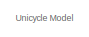
[diagram: root canvas - part 1/12, top left region]
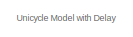
[diagram: root canvas - part 2/12, top center region]
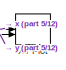
[diagram: root canvas - part 3/12, top center region]
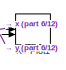
[diagram: root canvas - part 4/12, top right region]
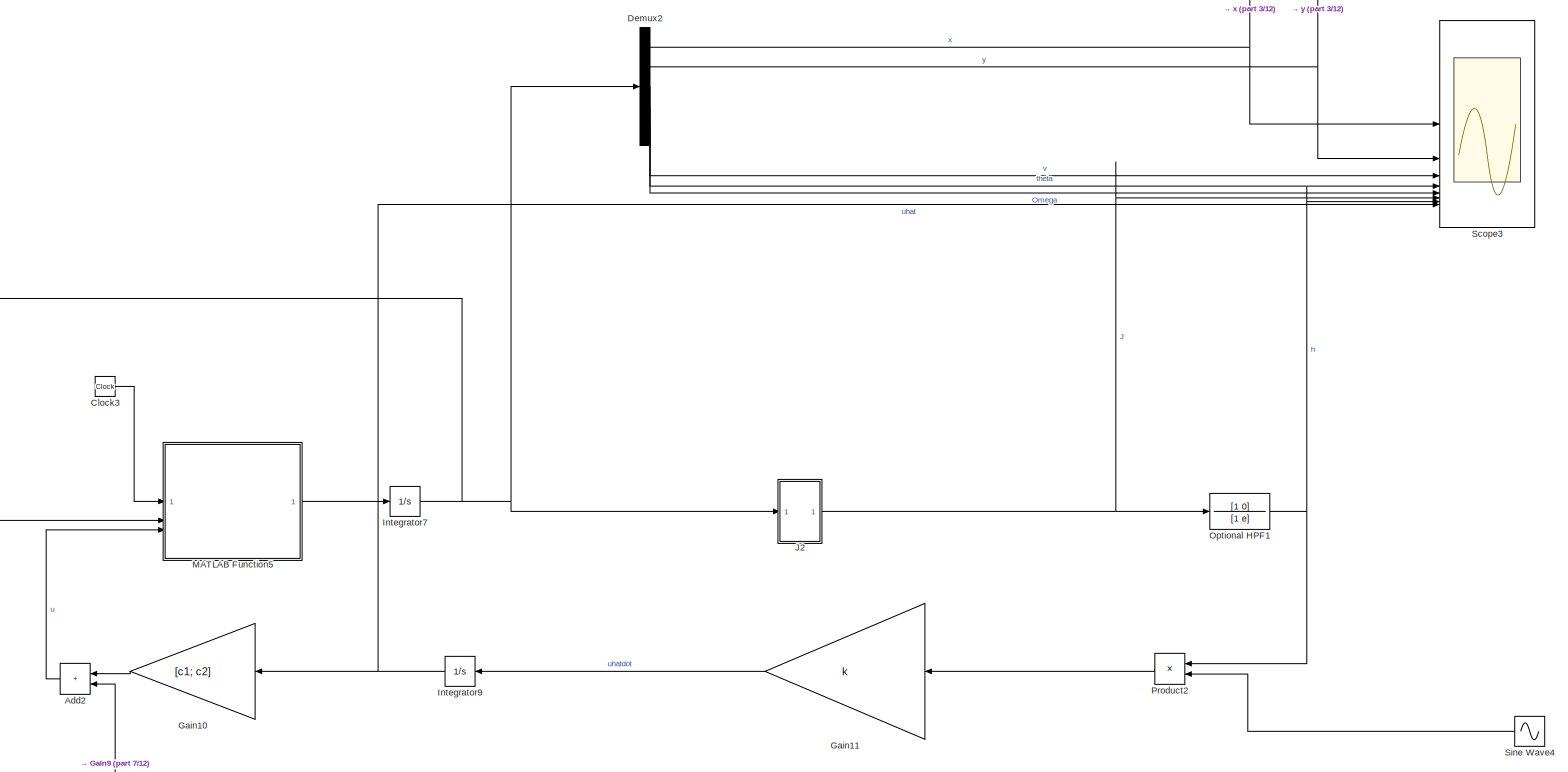
[diagram: root canvas - part 5/12, top left region]
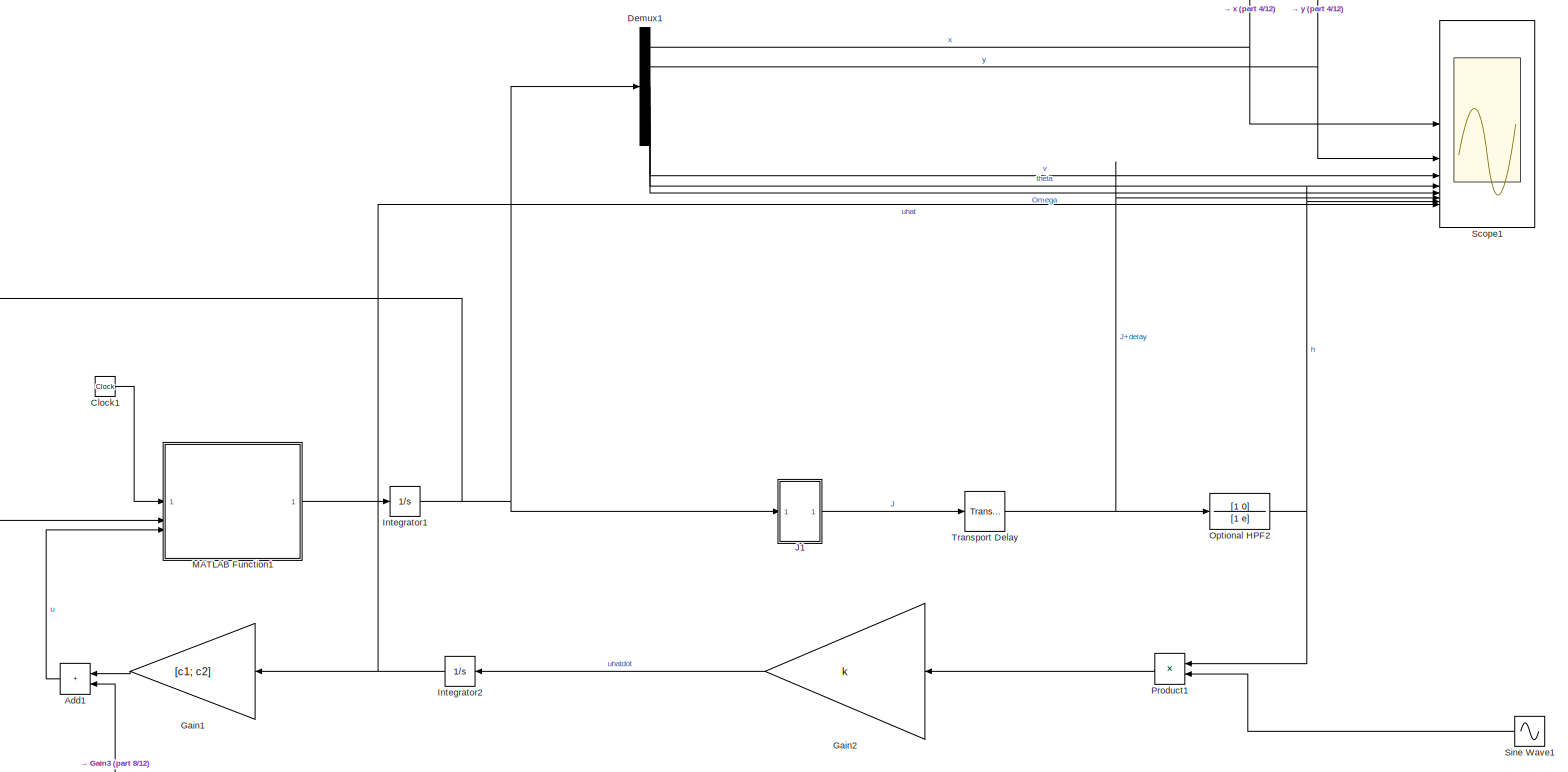
[diagram: root canvas - part 6/12, top right region]
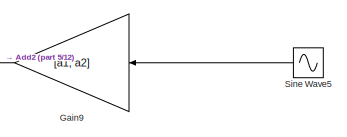
[diagram: root canvas - part 7/12, middle left region]
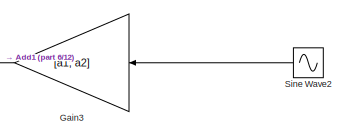
[diagram: root canvas - part 8/12, central region]
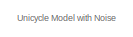
[diagram: root canvas - part 9/12, middle left region]
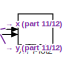
[diagram: root canvas - part 10/12, middle right region]
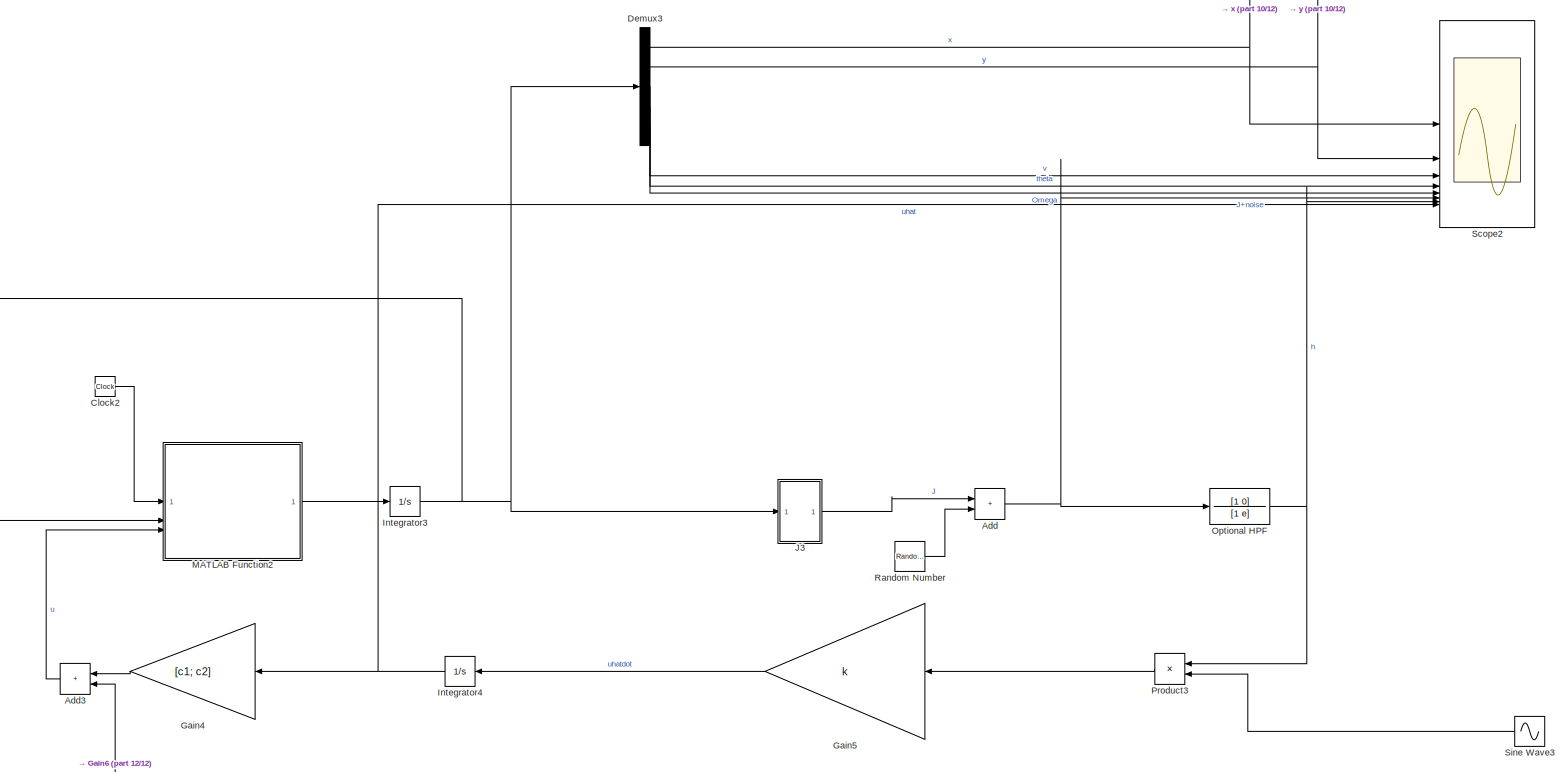
[diagram: root canvas - part 11/12, bottom center region]
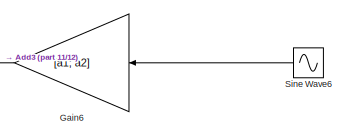
[diagram: root canvas - part 12/12, bottom center region]
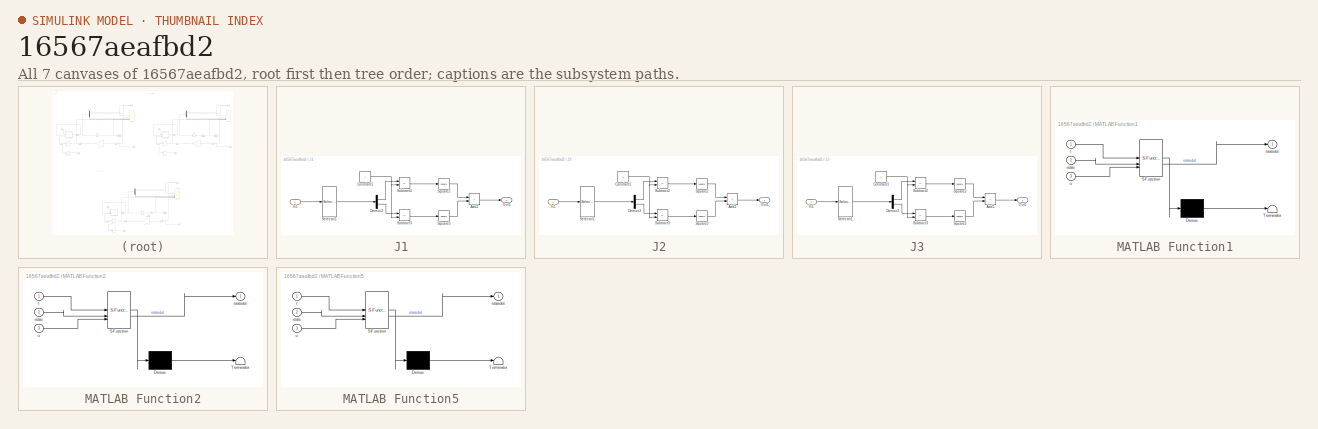
[diagram: thumbnail index - all 7 canvases of the model, root first then tree order]
MODEL slx_16567aeafbd2
KIND model
CONFIG AbsTol = 1e-10
CONFIG EnableMultiTasking = off
CONFIG FixedStep = 0.001
CONFIG MaxStep = auto
CONFIG MinStep = auto
CONFIG RelTol = 1e-10
CONFIG SampleTimeConstraint = Unconstrained
CONFIG SolverName = ode4
CONFIG StartTime = 0.0
CONFIG StopTime = 4000
BLOCK [Sum] Add
  IconShape = rectangular
BLOCK [Sum] Add1
  IconShape = rectangular
BLOCK [Sum] Add2
  IconShape = rectangular
BLOCK [Sum] Add3
  IconShape = rectangular
BLOCK [Clock] Clock1
BLOCK [Clock] Clock2
BLOCK [Clock] Clock3
BLOCK [Demux] Demux1
  Outputs = 5
BLOCK [Demux] Demux2
  Outputs = 5
BLOCK [Demux] Demux3
  Outputs = 5
BLOCK [Gain] Gain1
  Gain = [c1; c2]
BLOCK [Gain] Gain10
  Gain = [c1; c2]
BLOCK [Gain] Gain11
  Gain = k
BLOCK [Gain] Gain2
  Gain = k
BLOCK [Gain] Gain3
  Gain = [a1; a2]
BLOCK [Gain] Gain4
  Gain = [c1; c2]
BLOCK [Gain] Gain5
  Gain = k
BLOCK [Gain] Gain6
  Gain = [a1; a2]
BLOCK [Gain] Gain9
  Gain = [a1; a2]
BLOCK [Integrator] Integrator1
  InitialCondition = [2;2;0;0;1.5]
BLOCK [Integrator] Integrator2
BLOCK [Integrator] Integrator3
  InitialCondition = [2;2;0;0;1.5]
BLOCK [Integrator] Integrator4
BLOCK [Integrator] Integrator7
  InitialCondition = [2;2;0;0;1.5]
BLOCK [Integrator] Integrator9
BLOCK [SubSystem] J1
BLOCK [Sum] J1/Add1
  IconShape = rectangular
BLOCK [Constant] J1/Constant1
BLOCK [Demux] J1/Demux2
  Outputs = 2
BLOCK [Inport] J1/In1
BLOCK [Outport] J1/Out1
BLOCK [Selector] J1/Selector1
  IndexOptions = Index vector (dialog)
  Indices = [1 2]
  InputPortWidth = 5
  OutputSizes = 1
BLOCK [Math] J1/Square2
  Operator = square
BLOCK [Math] J1/Square3
  Operator = square
BLOCK [Sum] J1/Subtract2
  IconShape = rectangular
  Inputs = +-
BLOCK [Sum] J1/Subtract3
  IconShape = rectangular
  Inputs = +-
BLOCK [SubSystem] J2
BLOCK [Sum] J2/Add1
  IconShape = rectangular
BLOCK [Constant] J2/Constant1
BLOCK [Demux] J2/Demux2
  Outputs = 2
BLOCK [Inport] J2/In1
BLOCK [Outport] J2/Out1
BLOCK [Selector] J2/Selector1
  IndexOptions = Index vector (dialog)
  Indices = [1 2]
  InputPortWidth = 5
  OutputSizes = 1
BLOCK [Math] J2/Square2
  Operator = square
BLOCK [Math] J2/Square3
  Operator = square
BLOCK [Sum] J2/Subtract2
  IconShape = rectangular
  Inputs = +-
BLOCK [Sum] J2/Subtract3
  IconShape = rectangular
  Inputs = +-
BLOCK [SubSystem] J3
BLOCK [Sum] J3/Add1
  IconShape = rectangular
BLOCK [Constant] J3/Constant1
BLOCK [Demux] J3/Demux2
  Outputs = 2
BLOCK [Inport] J3/In1
BLOCK [Outport] J3/Out1
BLOCK [Selector] J3/Selector1
  IndexOptions = Index vector (dialog)
  Indices = [1 2]
  InputPortWidth = 5
  OutputSizes = 1
BLOCK [Math] J3/Square2
  Operator = square
BLOCK [Math] J3/Square3
  Operator = square
BLOCK [Sum] J3/Subtract2
  IconShape = rectangular
  Inputs = +-
BLOCK [Sum] J3/Subtract3
  IconShape = rectangular
  Inputs = +-
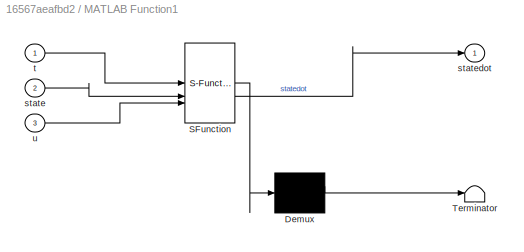
BLOCK [SubSystem] MATLAB Function1
  ErrorFcn = Stateflow.Translate.translate
  PermitHierarchicalResolution = ExplicitOnly
  SFBlockType = MATLAB Function
  TreatAsAtomicUnit = on
BLOCK [Demux] MATLAB Function1/ Demux 
  Outputs = 1
BLOCK [S-Function] MATLAB Function1/ SFunction 
  EnableBusSupport = on
  FunctionName = sf_sfun
  PortCounts = [3 2]
  SFcnIsStateOwnerBlock = off
  SFunctionDeploymentMode = off
  Tag = Stateflow S-Function 1
BLOCK [Terminator] MATLAB Function1/ Terminator 
BLOCK [Inport] MATLAB Function1/state
  Port = 2
BLOCK [Outport] MATLAB Function1/statedot
BLOCK [Inport] MATLAB Function1/t
BLOCK [Inport] MATLAB Function1/u
  Port = 3
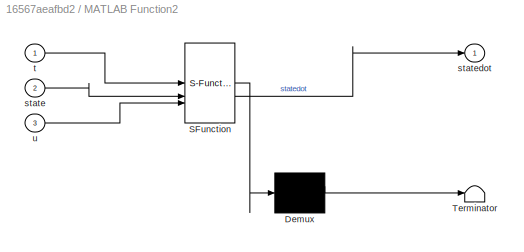
BLOCK [SubSystem] MATLAB Function2
  ErrorFcn = Stateflow.Translate.translate
  PermitHierarchicalResolution = ExplicitOnly
  SFBlockType = MATLAB Function
  TreatAsAtomicUnit = on
BLOCK [Demux] MATLAB Function2/ Demux 
  Outputs = 1
BLOCK [S-Function] MATLAB Function2/ SFunction 
  EnableBusSupport = on
  FunctionName = sf_sfun
  PortCounts = [3 2]
  SFcnIsStateOwnerBlock = off
  SFunctionDeploymentMode = off
  Tag = Stateflow S-Function 2
BLOCK [Terminator] MATLAB Function2/ Terminator 
BLOCK [Inport] MATLAB Function2/state
  Port = 2
BLOCK [Outport] MATLAB Function2/statedot
BLOCK [Inport] MATLAB Function2/t
BLOCK [Inport] MATLAB Function2/u
  Port = 3
BLOCK [SubSystem] MATLAB Function5
  ErrorFcn = Stateflow.Translate.translate
  PermitHierarchicalResolution = ExplicitOnly
  SFBlockType = MATLAB Function
  TreatAsAtomicUnit = on
BLOCK [Demux] MATLAB Function5/ Demux 
  Outputs = 1
BLOCK [S-Function] MATLAB Function5/ SFunction 
  EnableBusSupport = on
  FunctionName = sf_sfun
  PortCounts = [3 2]
  SFcnIsStateOwnerBlock = off
  SFunctionDeploymentMode = off
  Tag = Stateflow S-Function 5
BLOCK [Terminator] MATLAB Function5/ Terminator 
BLOCK [Inport] MATLAB Function5/state
  Port = 2
BLOCK [Outport] MATLAB Function5/statedot
BLOCK [Inport] MATLAB Function5/t
BLOCK [Inport] MATLAB Function5/u
  Port = 3
BLOCK [TransferFcn] Optional HPF
  Denominator = [1 e]
  Numerator = [1 0]
BLOCK [TransferFcn] Optional HPF1
  Denominator = [1 e]
  Numerator = [1 0]
BLOCK [TransferFcn] Optional HPF2
  Denominator = [1 e]
  Numerator = [1 0]
BLOCK [Product] Product1
BLOCK [Product] Product2
BLOCK [Product] Product3
BLOCK [RandomNumber] Random Number
  SampleTime = 0.001
  Seed = 1
  Variance = variance
BLOCK [Scope] Scope1
  Floating = off
  NumInputPorts = 8
  ScopeSpecificationString = Simulink.scopes.TimeScopeBlockCfg('CurrentConfiguration', extmgr.ConfigurationSet(extmgr.Configuration('Core','General UI',true,'FigureColor',[1 1 1]),extmgr.Configuration('Core','Source UI',true),extmgr.Configuration('Sources','WiredSimulink',true,'DataLoggingVariableName','ScopeData1'),extmgr.Configuration('Visuals','Time Domain',true,'SerializedDisplays',{struct('MinYLimReal','0.75588','MaxYLim...<+7308ch>
BLOCK [Scope] Scope2
  Floating = off
  NumInputPorts = 8
  ScopeSpecificationString = Simulink.scopes.TimeScopeBlockCfg('CurrentConfiguration', extmgr.ConfigurationSet(extmgr.Configuration('Core','General UI',true,'FigureColor',[1 1 1]),extmgr.Configuration('Core','Source UI',true),extmgr.Configuration('Sources','WiredSimulink',true,'DataLoggingVariableName','ScopeData2'),extmgr.Configuration('Visuals','Time Domain',true,'SerializedDisplays',{struct('MinYLimReal','0.04459','MaxYLim...<+7296ch>
BLOCK [Scope] Scope3
  Floating = off
  NumInputPorts = 8
  ScopeSpecificationString = Simulink.scopes.TimeScopeBlockCfg('CurrentConfiguration', extmgr.ConfigurationSet(extmgr.Configuration('Core','General UI',true,'FigureColor',[1 1 1]),extmgr.Configuration('Core','Source UI',true),extmgr.Configuration('Sources','WiredSimulink',true,'DataLoggingVariableName','ScopeData3'),extmgr.Configuration('Visuals','Time Domain',true,'SerializedDisplays',{struct('MinYLimReal','0.14684','MaxYLim...<+6597ch>
BLOCK [Sin] Sine Wave1
  Amplitude = omega
  Frequency = omega
  Phase = pi/2
  SampleTime = 0
BLOCK [Sin] Sine Wave2
  Amplitude = omega
  Frequency = omega
  Phase = pi/2
  SampleTime = 0
BLOCK [Sin] Sine Wave3
  Amplitude = omega
  Frequency = omega
  Phase = pi/2
  SampleTime = 0
BLOCK [Sin] Sine Wave4
  Amplitude = omega
  Frequency = omega
  Phase = pi/2
  SampleTime = 0
BLOCK [Sin] Sine Wave5
  Amplitude = omega
  Frequency = omega
  Phase = pi/2
  SampleTime = 0
BLOCK [Sin] Sine Wave6
  Amplitude = omega
  Frequency = omega
  Phase = pi/2
  SampleTime = 0
BLOCK [TransportDelay] Transport Delay
  DelayTime = delay
  InitialOutput = (2-1)^2 + (2-1)^2
BLOCK [Record] XY Plot
  CompatibilityTag = XY
  FileSettingsInternal = {"entries":[{"content":{"excelSettings":{"content":{},"type":"Streamout.ExcelSettings"}},"type":"Streamout.FileSettingStorage","uuid":""}],"packageUris":["http:\/\/schema.mathworks.com\/mf0\/streamout_blocks\/R2020a"],"version":"1.0"}  <repeated x3 — deduplicated; at blocks: XY Plot, XY Plot1, XY Plot2>
  Layout = [1 1]
  SignalsInternal = {"entries":[{"content":{"signals":[{"content":{"blockPath":[],"dimensions":[1,1],"domain":"","lineColor":"#64d413","lineWidth":2,"port":1,"sid":[""],"signalID":1,"signalName":"x"},"type":"RecordBlkView.Signal","uuid":""},{"content":{"blockPath":[],"dimensions":[1,1],"domain":"","lineColor":"#ff13a6","lineWidth":2,"port":2,"sid":[""],"signalID":2,"signalName":"y"},"type":"RecordBlkView.Signal","uui...<+152ch>
  VisualizationBindings = {"xyplotplugin":{"info":[{"series":[],"subplotID":1}]}}
BLOCK [Record] XY Plot1
  CompatibilityTag = XY
  Layout = [1 1]
  SignalsInternal = {"entries":[{"content":{"signals":[{"content":{"blockPath":[],"dimensions":[1,1],"domain":"","lineColor":"#ff6929","lineWidth":2,"port":1,"sid":[""],"signalID":1,"signalName":"x"},"type":"RecordBlkView.Signal","uuid":""},{"content":{"blockPath":[],"dimensions":[1,1],"domain":"","lineColor":"#b746ff","lineWidth":2,"port":2,"sid":[""],"signalID":2,"signalName":"y"},"type":"RecordBlkView.Signal","uui...<+152ch>
  VisualizationBindings = {"xyplotplugin":{"info":[{"series":[],"subplotID":1}]}}
BLOCK [Record] XY Plot2
  CompatibilityTag = XY
  Layout = [1 1]
  SignalsInternal = {"entries":[{"content":{"signals":[{"content":{"blockPath":[],"dimensions":[1,1],"domain":"","lineColor":"#a2142f","lineWidth":2,"port":1,"sid":[""],"signalID":1,"signalName":"x"},"type":"RecordBlkView.Signal","uuid":""},{"content":{"blockPath":[],"dimensions":[1,1],"domain":"","lineColor":"#139fff","lineWidth":2,"port":2,"sid":[""],"signalID":2,"signalName":"y"},"type":"RecordBlkView.Signal","uui...<+152ch>
  VisualizationBindings = {"xyplotplugin":{"info":[{"series":[],"subplotID":1}]}}
ANNOTATION (root): Unicycle Model with Delay
ANNOTATION (root): Unicycle Model with Noise
ANNOTATION (root): Unicycle Model
LINE Add1:1 -> MATLAB Function1:3
LINE Add2:1 -> MATLAB Function5:3
LINE Add3:1 -> MATLAB Function2:3
NET Add:1 -> Optional HPF:1, Scope2:6
LINE Clock1:1 -> MATLAB Function1:1
LINE Clock2:1 -> MATLAB Function2:1
LINE Clock3:1 -> MATLAB Function5:1
NET Demux1:1 -> Scope1:1, XY Plot1:1
NET Demux1:2 -> Scope1:2, XY Plot1:2
LINE Demux1:3 -> Scope1:3
LINE Demux1:4 -> Scope1:4
LINE Demux1:5 -> Scope1:5
NET Demux2:1 -> Scope3:1, XY Plot:1
NET Demux2:2 -> Scope3:2, XY Plot:2
LINE Demux2:3 -> Scope3:3
LINE Demux2:4 -> Scope3:4
LINE Demux2:5 -> Scope3:5
NET Demux3:1 -> Scope2:1, XY Plot2:1
NET Demux3:2 -> Scope2:2, XY Plot2:2
LINE Demux3:3 -> Scope2:3
LINE Demux3:4 -> Scope2:4
LINE Demux3:5 -> Scope2:5
LINE Gain10:1 -> Add2:1
LINE Gain11:1 -> Integrator9:1
LINE Gain1:1 -> Add1:1
LINE Gain2:1 -> Integrator2:1
LINE Gain3:1 -> Add1:2
LINE Gain4:1 -> Add3:1
LINE Gain5:1 -> Integrator4:1
LINE Gain6:1 -> Add3:2
LINE Gain9:1 -> Add2:2
NET Integrator1:1 -> Demux1:1, J1:1, MATLAB Function1:2
NET Integrator2:1 -> Gain1:1, Scope1:8
NET Integrator3:1 -> Demux3:1, J3:1, MATLAB Function2:2
NET Integrator4:1 -> Gain4:1, Scope2:8
NET Integrator7:1 -> Demux2:1, J2:1, MATLAB Function5:2
NET Integrator9:1 -> Gain10:1, Scope3:8
LINE J1/Add1:1 -> J1/Out1:1
NET J1/Constant1:1 -> J1/Subtract2:2, J1/Subtract3:2
LINE J1/Demux2:1 -> J1/Subtract2:1
LINE J1/Demux2:2 -> J1/Subtract3:1
LINE J1/In1:1 -> J1/Selector1:1
LINE J1/Selector1:1 -> J1/Demux2:1
LINE J1/Square2:1 -> J1/Add1:1
LINE J1/Square3:1 -> J1/Add1:2
LINE J1/Subtract2:1 -> J1/Square2:1
LINE J1/Subtract3:1 -> J1/Square3:1
LINE J1:1 -> Transport Delay:1
LINE J2/Add1:1 -> J2/Out1:1
NET J2/Constant1:1 -> J2/Subtract2:2, J2/Subtract3:2
LINE J2/Demux2:1 -> J2/Subtract2:1
LINE J2/Demux2:2 -> J2/Subtract3:1
LINE J2/In1:1 -> J2/Selector1:1
LINE J2/Selector1:1 -> J2/Demux2:1
LINE J2/Square2:1 -> J2/Add1:1
LINE J2/Square3:1 -> J2/Add1:2
LINE J2/Subtract2:1 -> J2/Square2:1
LINE J2/Subtract3:1 -> J2/Square3:1
NET J2:1 -> Optional HPF1:1, Scope3:6
LINE J3/Add1:1 -> J3/Out1:1
NET J3/Constant1:1 -> J3/Subtract2:2, J3/Subtract3:2
LINE J3/Demux2:1 -> J3/Subtract2:1
LINE J3/Demux2:2 -> J3/Subtract3:1
LINE J3/In1:1 -> J3/Selector1:1
LINE J3/Selector1:1 -> J3/Demux2:1
LINE J3/Square2:1 -> J3/Add1:1
LINE J3/Square3:1 -> J3/Add1:2
LINE J3/Subtract2:1 -> J3/Square2:1
LINE J3/Subtract3:1 -> J3/Square3:1
LINE J3:1 -> Add:1
LINE MATLAB Function1:1 -> Integrator1:1
LINE MATLAB Function2:1 -> Integrator3:1
LINE MATLAB Function5:1 -> Integrator7:1
NET Optional HPF1:1 -> Product2:1, Scope3:7
NET Optional HPF2:1 -> Product1:1, Scope1:7
NET Optional HPF:1 -> Product3:1, Scope2:7
LINE Product1:1 -> Gain2:1
LINE Product2:1 -> Gain11:1
LINE Product3:1 -> Gain5:1
LINE Random Number:1 -> Add:2
LINE Sine Wave1:1 -> Product1:2
LINE Sine Wave2:1 -> Gain3:1
LINE Sine Wave3:1 -> Product3:2
LINE Sine Wave4:1 -> Product2:2
LINE Sine Wave5:1 -> Gain9:1
LINE Sine Wave6:1 -> Gain6:1
NET Transport Delay:1 -> Optional HPF2:1, Scope1:6
note: NET lines group one-source signal fan-out (src -> all destinations, sorted); 1:1 wires keep LINE
CHART MATLAB Function2 states=1 transitions=1
  STATE_LABEL 'eML_blk_kernel()'
  STATE_LABEL 'SCRIPT:\nfunction statedot = dynamics(t,state,u)\nxpos = state(1);\nypos = state(2);\nv = state(3);\ntheta = state(4);\nOmega = state(5);\n\nd1 = 0.2;\nd2 = 0.1;\n\nxdot = v * cos(theta);\nydot = v * sin(theta);\nvdot = u(1) - d1*v;\nthetadot = Omega;\nOmegadot = u(2) - d2*Omega;\n\nstatedot = [xdot; ydot; vdot; thetadot; Omegadot];\n'  <repeated x3 — deduplicated; at blocks: MATLAB Function2, MATLAB Function5, MATLAB Function1>
CHART MATLAB Function5 states=1 transitions=1
  STATE_LABEL 'eML_blk_kernel()'
CHART MATLAB Function1 states=1 transitions=1
  STATE_LABEL 'eML_blk_kernel()'
CHART  states=0 transitions=0
CHART  states=0 transitions=0
CHART  states=0 transitions=0
